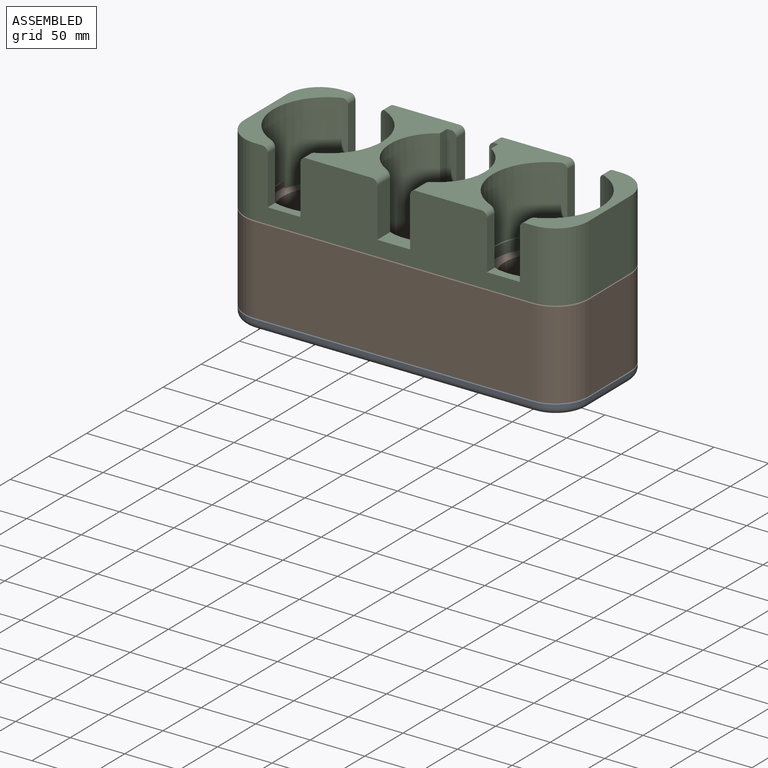
[diagram: assembled view]
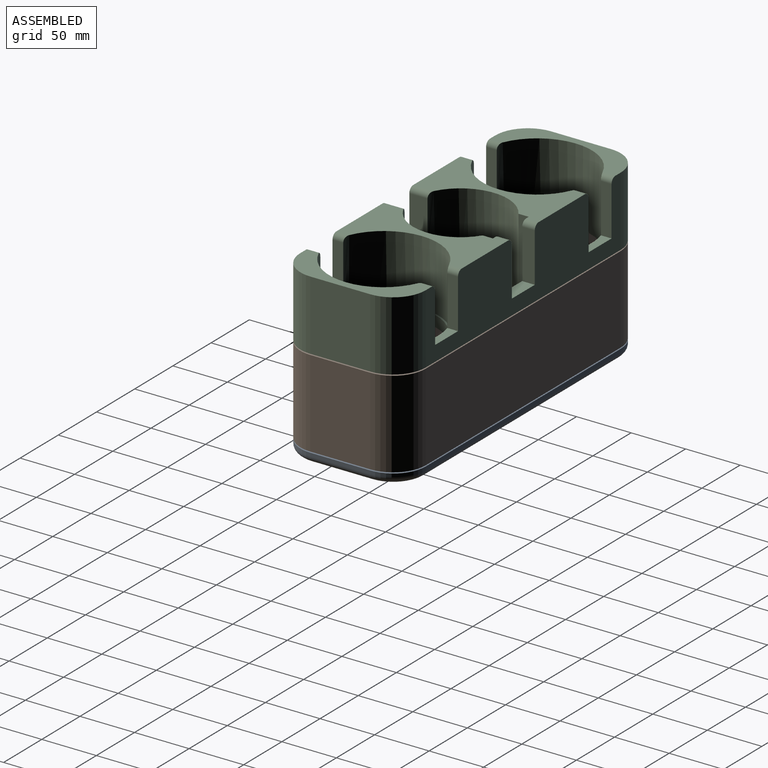
[diagram: assembled view, second angle]
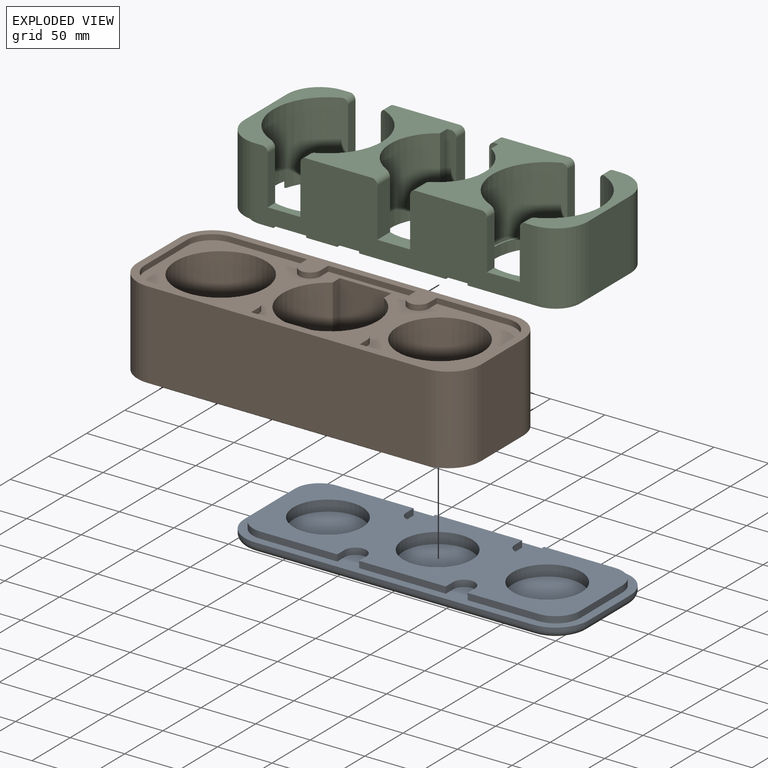
[diagram: exploded view]
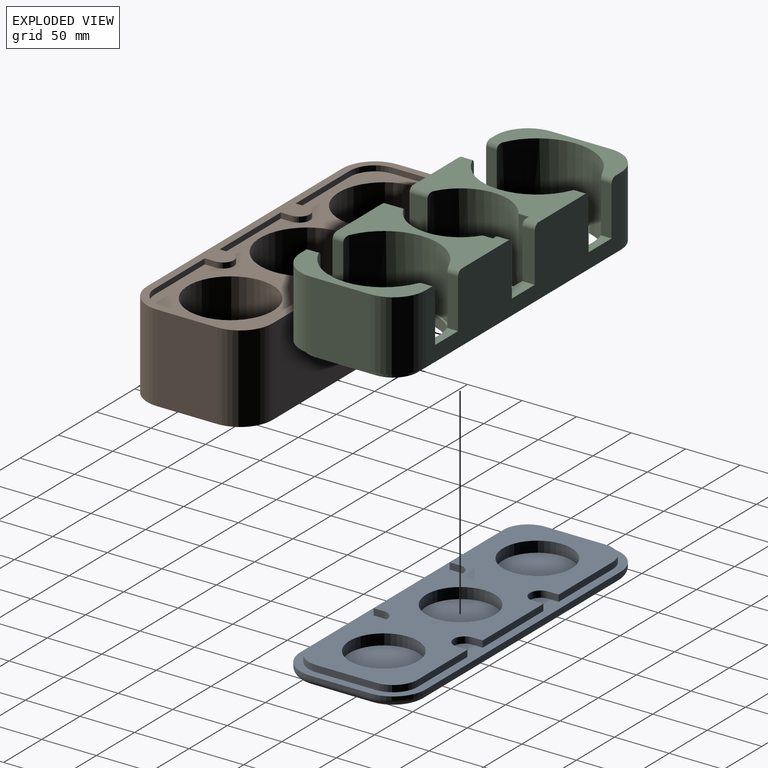
[diagram: exploded view, second angle]
ASSEMBLY  parts=3 mates=2
PART A: 49 faces, bbox 319.9x119.9x15 mm
  f0: cylinder r=10mm len=20mm, axis (0,0,1), area 188.5mm2, adj f6,f11,f24,f25
  f1: cylinder r=10mm len=20mm, axis (0,0,1), area 188.5mm2, adj f6,f11,f21,f22
  f2: cylinder r=10mm len=20mm, axis (0,0,1), area 188.5mm2, adj f6,f11,f14,f15
  f3: cylinder r=10mm len=20mm, axis (0,0,1), area 188.5mm2, adj f6,f11,f12,f31
  f4: plane 63x63mm, normal (0,0,1), area 3117.2mm2, adj f5
  f5: cylinder r=31.5mm len=63mm, axis (0,0,-1), area 1979.2mm2, adj f4,f6
  f6: plane 300x100mm, normal (0,0,1), area 18825.4mm2, adj f0,f1,f2,f3,f5,f8,f10,f12
  f7: plane 63x63mm, normal (0,0,1), area 3117.2mm2, adj f8
  f8: cylinder r=31.5mm len=63mm, axis (0,0,-1), area 1979.2mm2, adj f6,f7
  f9: plane 63x63mm, normal (0,0,1), area 3117.2mm2, adj f10
  f10: cylinder r=31.5mm len=63mm, axis (0,0,-1), area 1979.2mm2, adj f6,f9
  f11: plane 315x115mm, normal (0,0,1), area 7275.3mm2, adj f0,f1,f2,f3,f12,f13,f14,f15
  f12: plane 9.5x6mm, normal (-1,0,0), area 57mm2, adj f3,f6,f11,f13
  f13: plane 79.5x6mm, normal (0,1,0), area 477mm2, adj f6,f11,f12,f14
  f14: plane 9.5x6mm, normal (1,0,0), area 57mm2, adj f2,f6,f11,f13
  f15: plane 9.5x6mm, normal (-1,0,0), area 57mm2, adj f2,f6,f11,f16
  f16: plane 65x6mm, normal (0,1,0), area 390mm2, adj f6,f11,f15,f17
  f17: cylinder r=22.5mm len=22.5mm, axis (0,0,1), area 212.1mm2, adj f6,f11,f16,f18
  f18: plane 55x6mm, normal (1,0,0), area 330mm2, adj f6,f11,f17,f19
  f19: cylinder r=22.5mm len=22.5mm, axis (0,0,1), area 212.1mm2, adj f6,f11,f18,f20
  f20: plane 65x6mm, normal (0,-1,0), area 390mm2, adj f6,f11,f19,f21
  f21: plane 9.5x6mm, normal (-1,0,0), area 57mm2, adj f1,f6,f11,f20
  f22: plane 9.5x6mm, normal (1,0,0), area 57mm2, adj f1,f6,f11,f23
  f23: plane 79.5x6mm, normal (0,-1,0), area 477mm2, adj f6,f11,f22,f24
  f24: plane 9.5x6mm, normal (-1,0,0), area 57mm2, adj f0,f6,f11,f23
  f25: plane 9.5x6mm, normal (1,0,0), area 57mm2, adj f0,f6,f11,f26
  f26: plane 70.5x6mm, normal (0,-1,0), area 423mm2, adj f6,f11,f25,f27
  f27: cylinder r=22.5mm len=22.5mm, axis (0,0,1), area 212.1mm2, adj f6,f11,f26,f28
  f28: plane 55x6mm, normal (-1,0,0), area 330mm2, adj f6,f11,f27,f29
  f29: cylinder r=22.5mm len=22.5mm, axis (0,0,1), area 212.1mm2, adj f6,f11,f28,f30
  f30: plane 70.5x6mm, normal (0,1,0), area 423mm2, adj f6,f11,f29,f31
  f31: plane 9.5x6mm, normal (1,0,0), area 57mm2, adj f3,f6,f11,f30
  f32: plane 303x103mm, normal (0,0,-1), area 30714.6mm2, adj f41,f42,f43,f44,f45,f46,f47,f48
  f33: cylinder r=30mm len=30mm, axis (0,0,-1), area 141.4mm2, adj f11,f34,f40,f47
  f34: plane 255x3mm, normal (0,1,0), area 765mm2, adj f11,f33,f35,f48
  f35: cylinder r=30mm len=30mm, axis (0,0,-1), area 141.4mm2, adj f11,f34,f36,f46
  f36: plane 55x3mm, normal (1,0,0), area 165mm2, adj f11,f35,f38,f44
  f37: plane 255x3mm, normal (0,-1,0), area 765mm2, adj f11,f38,f39,f41
  f38: cylinder r=30mm len=30mm, axis (0,0,-1), area 141.4mm2, adj f11,f36,f37,f42
  f39: cylinder r=30mm len=30mm, axis (0,0,-1), area 141.4mm2, adj f11,f37,f40,f43
  f40: plane 55x3mm, normal (-1,0,0), area 165mm2, adj f11,f33,f39,f45
  f41: cylinder r=6mm len=255mm, axis (1,0,0), area 2403.3mm2, adj f32,f37,f42,f43
  f42: torus R=24mm, axis (0,0,1), area 411.9mm2, adj f32,f38,f41,f44
  f43: torus R=24mm, axis (0,0,1), area 411.9mm2, adj f32,f39,f41,f45
  f44: cylinder r=6mm len=55mm, axis (0,1,0), area 518.4mm2, adj f32,f36,f42,f46
  f45: cylinder r=6mm len=55mm, axis (0,-1,0), area 518.4mm2, adj f32,f40,f43,f47
  f46: torus R=24mm, axis (0,0,1), area 411.9mm2, adj f32,f35,f44,f48
  f47: torus R=24mm, axis (0,0,1), area 411.9mm2, adj f32,f33,f45,f48
  f48: cylinder r=6mm len=255mm, axis (-1,0,0), area 2403.3mm2, adj f32,f34,f46,f47
PART B: 66 faces, bbox 315x115x80 mm
  f0: plane 301x101mm, normal (0,0,-1), area 12214.1mm2, adj f1,f2,f3,f4,f18,f19,f20,f21
  f1: cylinder r=9.75mm len=19.5mm, axis (0,0,1), area 153.2mm2, adj f0,f24,f46,f65
  f2: cylinder r=9.75mm len=19.5mm, axis (0,0,1), area 153.2mm2, adj f0,f24,f58,f59
  f3: cylinder r=9.75mm len=19.5mm, axis (0,0,1), area 153.2mm2, adj f0,f24,f55,f56
  f4: cylinder r=9.75mm len=19.5mm, axis (0,0,1), area 153.2mm2, adj f0,f24,f48,f49
  f5: plane 301x101mm, normal (0,0,1), area 12214.1mm2, adj f6,f7,f8,f9,f18,f19,f20,f21
  f6: cylinder r=9.75mm len=19.5mm, axis (0,0,-1), area 153.2mm2, adj f5,f25,f39,f40
  f7: cylinder r=9.75mm len=19.5mm, axis (0,0,-1), area 153.2mm2, adj f5,f25,f36,f37
  f8: cylinder r=9.75mm len=19.5mm, axis (0,0,-1), area 153.2mm2, adj f5,f25,f29,f30
  f9: cylinder r=9.75mm len=19.5mm, axis (0,0,-1), area 153.2mm2, adj f5,f25,f26,f27
  f10: cylinder r=30mm len=80mm, axis (0,0,-1), area 3769.9mm2, adj f11,f17,f24,f25
  f11: plane 255x80mm, normal (0,1,0), area 20400mm2, adj f10,f12,f24,f25
  f12: cylinder r=30mm len=80mm, axis (0,0,-1), area 3769.9mm2, adj f11,f13,f24,f25
  f13: plane 80x55mm, normal (1,0,0), area 4400mm2, adj f12,f15,f24,f25
  f14: plane 255x80mm, normal (0,-1,0), area 20400mm2, adj f15,f16,f24,f25
  f15: cylinder r=30mm len=80mm, axis (0,0,-1), area 3769.9mm2, adj f13,f14,f24,f25
  f16: cylinder r=30mm len=80mm, axis (0,0,-1), area 3769.9mm2, adj f14,f17,f24,f25
  f17: plane 80x55mm, normal (-1,0,0), area 4400mm2, adj f10,f16,f24,f25
  f18: cylinder r=39mm len=78mm, axis (0,0,-1), area 17153.1mm2, adj f0,f5
  f19: cylinder r=43.5mm len=87mm, axis (0,0,-1), area 15656.7mm2, adj f0,f5,f20,f21
  f20: plane 70x9.39mm, normal (1,0,0), area 657.6mm2, adj f0,f5,f19,f22
  f21: plane 70x9.39mm, normal (-1,0,0), area 657.6mm2, adj f0,f5,f19,f22
  f22: plane 70x47mm, normal (0,-1,0), area 3290mm2, adj f0,f5,f20,f21
  f23: cylinder r=41.5mm len=83mm, axis (0,0,-1), area 18252.7mm2, adj f0,f5
  f24: plane 315x115mm, normal (0,0,-1), area 6882.8mm2, adj f1,f2,f3,f4,f10,f11,f12,f13
  f25: plane 315x115mm, normal (0,0,1), area 6882.8mm2, adj f6,f7,f8,f9,f10,f11,f12,f13
  f26: plane 10x5mm, normal (1,0,0), area 50mm2, adj f5,f9,f25,f45
  f27: plane 10x5mm, normal (-1,0,0), area 50mm2, adj f5,f9,f25,f28
  f28: plane 80x5mm, normal (0,1,0), area 400mm2, adj f5,f25,f27,f29
  f29: plane 10x5mm, normal (1,0,0), area 50mm2, adj f5,f8,f25,f28
  f30: plane 10x5mm, normal (-1,0,0), area 50mm2, adj f5,f8,f25,f31
  f31: plane 70.75x5mm, normal (0,1,0), area 353.7mm2, adj f5,f25,f30,f32
  f32: cylinder r=23mm len=23mm, axis (0,0,-1), area 180.6mm2, adj f5,f25,f31,f33
  f33: plane 55x5mm, normal (1,0,0), area 275mm2, adj f5,f25,f32,f34
  f34: cylinder r=23mm len=23mm, axis (0,0,-1), area 180.6mm2, adj f5,f25,f33,f35
  f35: plane 70.75x5mm, normal (0,-1,0), area 353.7mm2, adj f5,f25,f34,f36
  f36: plane 10x5mm, normal (-1,0,0), area 50mm2, adj f5,f7,f25,f35
  f37: plane 10x5mm, normal (1,0,0), area 50mm2, adj f5,f7,f25,f38
  f38: plane 80x5mm, normal (0,-1,0), area 400mm2, adj f5,f25,f37,f39
  f39: plane 10x5mm, normal (-1,0,0), area 50mm2, adj f5,f6,f25,f38
  f40: plane 10x5mm, normal (1,0,0), area 50mm2, adj f5,f6,f25,f41
  f41: plane 65.25x5mm, normal (0,-1,0), area 326.2mm2, adj f5,f25,f40,f42
  f42: cylinder r=23mm len=23mm, axis (0,0,-1), area 180.6mm2, adj f5,f25,f41,f43
  f43: plane 55x5mm, normal (-1,0,0), area 275mm2, adj f5,f25,f42,f44
  f44: cylinder r=23mm len=23mm, axis (0,0,-1), area 180.6mm2, adj f5,f25,f43,f45
  f45: plane 65.25x5mm, normal (0,1,0), area 326.2mm2, adj f5,f25,f26,f44
  f46: plane 10x5mm, normal (-1,0,0), area 50mm2, adj f0,f1,f24,f47
  f47: plane 80x5mm, normal (0,-1,0), area 400mm2, adj f0,f24,f46,f48
  f48: plane 10x5mm, normal (1,0,0), area 50mm2, adj f0,f4,f24,f47
  f49: plane 10x5mm, normal (-1,0,0), area 50mm2, adj f0,f4,f24,f50
  f50: plane 70.75x5mm, normal (0,-1,0), area 353.8mm2, adj f0,f24,f49,f51
  f51: cylinder r=23mm len=23mm, axis (0,0,1), area 180.6mm2, adj f0,f24,f50,f52
  f52: plane 55x5mm, normal (1,0,0), area 275mm2, adj f0,f24,f51,f53
  f53: cylinder r=23mm len=23mm, axis (0,0,1), area 180.6mm2, adj f0,f24,f52,f54
  f54: plane 70.75x5mm, normal (0,1,0), area 353.8mm2, adj f0,f24,f53,f55
  f55: plane 10x5mm, normal (-1,0,0), area 50mm2, adj f0,f3,f24,f54
  f56: plane 10x5mm, normal (1,0,0), area 50mm2, adj f0,f3,f24,f57
  f57: plane 80x5mm, normal (0,1,0), area 400mm2, adj f0,f24,f56,f58
  f58: plane 10x5mm, normal (-1,0,0), area 50mm2, adj f0,f2,f24,f57
  f59: plane 10x5mm, normal (1,0,0), area 50mm2, adj f0,f2,f24,f60
  f60: plane 65.25x5mm, normal (0,1,0), area 326.2mm2, adj f0,f24,f59,f61
  f61: cylinder r=23mm len=23mm, axis (0,0,1), area 180.6mm2, adj f0,f24,f60,f62
  f62: plane 55x5mm, normal (-1,0,0), area 275mm2, adj f0,f24,f61,f63
  f63: cylinder r=23mm len=23mm, axis (0,0,1), area 180.6mm2, adj f0,f24,f62,f64
  f64: plane 65.25x5mm, normal (0,-1,0), area 326.2mm2, adj f0,f24,f63,f65
  f65: plane 10x5mm, normal (1,0,0), area 50mm2, adj f0,f1,f24,f64
PART C: 91 faces, bbox 315x115x70 mm
  f0: plane 14x6mm, normal (-1,0,0), area 84mm2, adj f2,f66,f87,f88
  f1: cylinder r=50mm len=100mm, axis (0,0,-1), area 18391.9mm2, adj f2,f3,f5,f6,f7,f14,f15,f16
  f2: plane 36.5x34.5mm, normal (0,0,-1), area 389.9mm2, adj f0,f1,f66,f67,f68,f88
  f3: plane 36.5x34.5mm, normal (0,0,-1), area 389.9mm2, adj f1,f62,f63,f64,f65,f89
  f4: cylinder r=50mm len=100mm, axis (0,0,-1), area 15780mm2, adj f8,f9,f10,f11,f12,f13,f17,f23
  f5: plane 45x9.8mm, normal (1,0,0), area 441.1mm2, adj f1,f6,f33,f56
  f6: plane 30x9.8mm, normal (0,0,1), area 247.8mm2, adj f1,f5,f7,f33
  f7: plane 45x9.8mm, normal (-1,0,0), area 441.1mm2, adj f1,f6,f33,f57
  f8: plane 45x9.8mm, normal (1,0,0), area 441.1mm2, adj f4,f9,f33,f49
  f9: plane 30x9.8mm, normal (0,0,1), area 247.8mm2, adj f4,f8,f10,f33
  f10: plane 45x9.8mm, normal (-1,0,0), area 441.1mm2, adj f4,f9,f33,f48
  f11: plane 45x9.8mm, normal (-1,0,0), area 441.1mm2, adj f4,f12,f31,f50
  f12: plane 30x9.8mm, normal (0,0,1), area 247.8mm2, adj f4,f11,f13,f31
  f13: plane 45x9.8mm, normal (1,0,0), area 441.1mm2, adj f4,f12,f31,f51
  f14: plane 45x9.8mm, normal (-1,0,0), area 441.1mm2, adj f1,f15,f31,f59
  f15: plane 30x9.8mm, normal (0,0,1), area 247.8mm2, adj f1,f14,f16,f31
  f16: plane 45x9.8mm, normal (1,0,0), area 441.1mm2, adj f1,f15,f31,f58
  f17: plane 115x37mm, normal (0,0,1), area 1887mm2, adj f4,f28,f29,f30,f31,f33,f48,f50
  f18: plane 115x37mm, normal (0,0,1), area 1887mm2, adj f1,f26,f27,f31,f32,f33,f56,f58
  f19: plane 45x16.67mm, normal (1,0,0), area 750.1mm2, adj f21,f33,f38,f54
  f20: plane 45x16.67mm, normal (-1,0,0), area 750.1mm2, adj f21,f33,f38,f55
  f21: plane 30x16.67mm, normal (0,0,1), area 446.3mm2, adj f19,f20,f33,f38
  f22: plane 45x11.5mm, normal (-1,0,0), area 517.5mm2, adj f31,f34,f35,f53
  f23: plane 115x60.5mm, normal (0,0,1), area 3650.9mm2, adj f4,f31,f33,f35,f36,f38,f49,f51
  f24: plane 115x60.5mm, normal (0,0,1), area 3650.9mm2, adj f1,f31,f33,f35,f37,f38,f52,f54
  f25: plane 45x11.5mm, normal (1,0,0), area 517.5mm2, adj f31,f34,f35,f52
  f26: plane 64x55mm, normal (-1,0,0), area 3520mm2, adj f18,f27,f32,f87
  f27: cylinder r=30mm len=64mm, axis (0,0,-1), area 3015.9mm2, adj f18,f26,f33,f87
  f28: cylinder r=30mm len=64mm, axis (0,0,-1), area 3015.9mm2, adj f17,f29,f33,f87
  f29: plane 64x55mm, normal (1,0,0), area 3520mm2, adj f17,f28,f30,f87
  f30: cylinder r=30mm len=64mm, axis (0,0,-1), area 3015.9mm2, adj f17,f29,f31,f87
  f31: plane 255x64mm, normal (0,1,0), area 11787.8mm2, adj f11,f12,f13,f14,f15,f16,f17,f18
  f32: cylinder r=30mm len=64mm, axis (0,0,-1), area 3015.9mm2, adj f18,f26,f31,f87
  f33: plane 255x64mm, normal (0,-1,0), area 11787.8mm2, adj f5,f6,f7,f8,f9,f10,f17,f18
  f34: plane 30x11.5mm, normal (0,0,1), area 345mm2, adj f22,f25,f31,f35
  f35: plane 70x47mm, normal (0,-1,0), area 1779.3mm2, adj f22,f23,f24,f25,f34,f36,f37,f39
  f36: plane 70x9.39mm, normal (-1,0,0), area 657.6mm2, adj f23,f35,f38,f39
  f37: plane 70x9.39mm, normal (1,0,0), area 657.6mm2, adj f24,f35,f38,f39
  f38: cylinder r=43.5mm len=87mm, axis (0,0,-1), area 14113.7mm2, adj f19,f20,f21,f23,f24,f36,f37,f39
  f39: plane 235.5x100mm, normal (0,0,-1), area 5938.3mm2, adj f1,f35,f36,f37,f38,f40,f42,f44
  f40: cylinder r=10mm len=25mm, axis (0,0,-1), area 1382.3mm2, adj f39,f41,f84,f85,f87
  f41: plane 20x20mm, normal (0,0,-1), area 314.2mm2, adj f40
  f42: cylinder r=10mm len=25mm, axis (0,0,-1), area 1382.3mm2, adj f39,f43,f81,f82,f87
  f43: plane 20x20mm, normal (0,0,-1), area 314.2mm2, adj f42
  f44: cylinder r=10mm len=25mm, axis (0,0,-1), area 1382.3mm2, adj f39,f45,f74,f75,f87
  f45: plane 20x20mm, normal (0,0,-1), area 314.2mm2, adj f44
  f46: cylinder r=10mm len=25mm, axis (0,0,-1), area 1382.3mm2, adj f39,f47,f71,f72,f87
  f47: plane 20x20mm, normal (0,0,-1), area 314.2mm2, adj f46
  f48: cylinder r=5mm len=11.67mm, axis (0,-1,0), area 82mm2, adj f4,f10,f17,f33
  f49: cylinder r=5mm len=11.67mm, axis (0,1,0), area 82mm2, adj f4,f8,f23,f33
  f50: cylinder r=5mm len=11.67mm, axis (0,-1,0), area 82mm2, adj f4,f11,f17,f31
  f51: cylinder r=5mm len=11.67mm, axis (0,1,0), area 82mm2, adj f4,f13,f23,f31
  f52: cylinder r=5mm len=11.5mm, axis (0,1,0), area 90.3mm2, adj f24,f25,f31,f35
  f53: cylinder r=5mm len=11.5mm, axis (0,-1,0), area 90.3mm2, adj f22,f23,f31,f35
  f54: cylinder r=5mm len=18.87mm, axis (0,1,0), area 136.8mm2, adj f19,f24,f33,f38
  f55: cylinder r=5mm len=18.87mm, axis (0,-1,0), area 136.8mm2, adj f20,f23,f33,f38
  f56: cylinder r=5mm len=11.67mm, axis (0,1,0), area 82mm2, adj f1,f5,f18,f33
  f57: cylinder r=5mm len=11.67mm, axis (0,-1,0), area 82mm2, adj f1,f7,f24,f33
  f58: cylinder r=5mm len=11.67mm, axis (0,1,0), area 82mm2, adj f1,f16,f18,f31
  f59: cylinder r=5mm len=11.67mm, axis (0,-1,0), area 82mm2, adj f1,f14,f24,f31
  f60: plane 100x100mm, normal (0,0,1), area 464.2mm2, adj f4,f90
  f61: plane 6x2.3mm, normal (-1,0,0), area 13.8mm2, adj f1,f39,f86,f87
  f62: plane 6x2.3mm, normal (1,0,0), area 13.8mm2, adj f1,f3,f63,f87
  f63: plane 12x6mm, normal (0,1,0), area 72mm2, adj f3,f62,f64,f87
  f64: cylinder r=22.5mm len=22.5mm, axis (0,0,-1), area 212.1mm2, adj f3,f63,f65,f87
  f65: plane 14x6mm, normal (-1,0,0), area 84mm2, adj f3,f64,f87,f89
  f66: cylinder r=22.5mm len=22.5mm, axis (0,0,-1), area 212.1mm2, adj f0,f2,f67,f87
  f67: plane 12x6mm, normal (0,-1,0), area 72mm2, adj f2,f66,f68,f87
  f68: plane 6x2.3mm, normal (1,0,0), area 13.8mm2, adj f1,f2,f67,f87
  f69: plane 6x2.3mm, normal (-1,0,0), area 13.8mm2, adj f1,f39,f70,f87
  f70: plane 28.5x6mm, normal (0,-1,0), area 171mm2, adj f39,f69,f71,f87
  f71: plane 9.5x6mm, normal (1,0,0), area 57mm2, adj f39,f46,f70,f87
  f72: plane 9.5x6mm, normal (-1,0,0), area 57mm2, adj f39,f46,f73,f87
  f73: plane 79.5x6mm, normal (0,-1,0), area 477mm2, adj f39,f72,f74,f87
  f74: plane 9.5x6mm, normal (1,0,0), area 57mm2, adj f39,f44,f73,f87
  f75: plane 9.5x6mm, normal (-1,0,0), area 57mm2, adj f39,f44,f76,f87
  f76: plane 65x6mm, normal (0,-1,0), area 390mm2, adj f39,f75,f77,f87
  f77: cylinder r=22.5mm len=22.5mm, axis (0,0,-1), area 212.1mm2, adj f39,f76,f78,f87
  f78: plane 55x6mm, normal (1,0,0), area 330mm2, adj f39,f77,f79,f87
  f79: cylinder r=22.5mm len=22.5mm, axis (0,0,-1), area 212.1mm2, adj f39,f78,f80,f87
  f80: plane 65x6mm, normal (0,1,0), area 390mm2, adj f39,f79,f81,f87
  f81: plane 9.5x6mm, normal (-1,0,0), area 57mm2, adj f39,f42,f80,f87
  f82: plane 9.5x6mm, normal (1,0,0), area 57mm2, adj f39,f42,f83,f87
  f83: plane 79.5x6mm, normal (0,1,0), area 477mm2, adj f39,f82,f84,f87
  f84: plane 9.5x6mm, normal (-1,0,0), area 57mm2, adj f39,f40,f83,f87
  f85: plane 9.5x6mm, normal (1,0,0), area 57mm2, adj f39,f40,f86,f87
  f86: plane 28.5x6mm, normal (0,1,0), area 171mm2, adj f39,f61,f85,f87
  f87: plane 315x115mm, normal (0,0,-1), area 6067.4mm2, adj f0,f1,f26,f27,f28,f29,f30,f31
  f88: plane 6x1.36mm, normal (0,1,0), area 8.1mm2, adj f0,f1,f2,f87
  f89: plane 6x1.36mm, normal (0,-1,0), area 8.1mm2, adj f1,f3,f65,f87
  f90: cylinder r=48.5mm len=97mm, axis (0,0,-1), area 3047.3mm2, adj f39,f60
PLACE A t=(-40.23,95.69,95.07)mm
PLACE B t=(-40.23,95.69,45.07)mm
PLACE C t=(-40.23,95.69,15.07)mm
MATE fastened B.f23 <-> C.f1  axis (0,0,-1) through (-90.73,95.69,100.07)mm
MATE fastened A.f8 <-> B.f23  axis (0,0,-1) through (-90.73,95.69,30.07)mm
